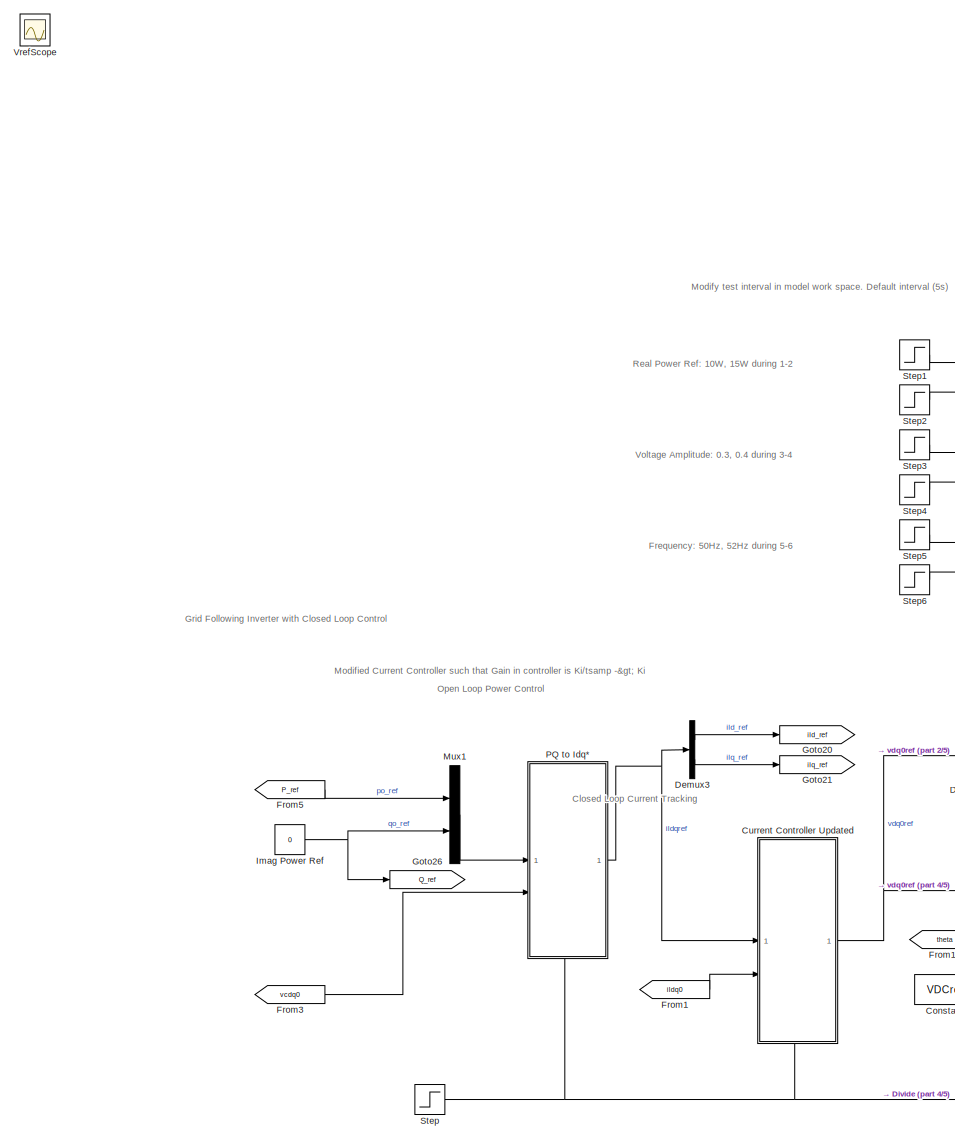
[diagram: root canvas - part 1/5, top left region]
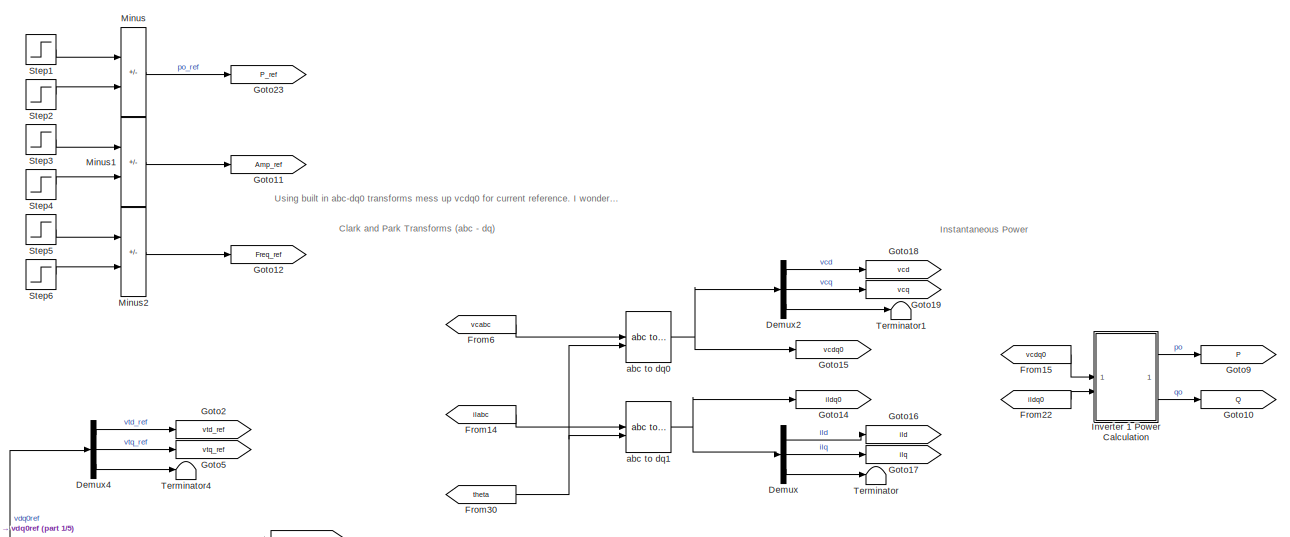
[diagram: root canvas - part 2/5, top center region]
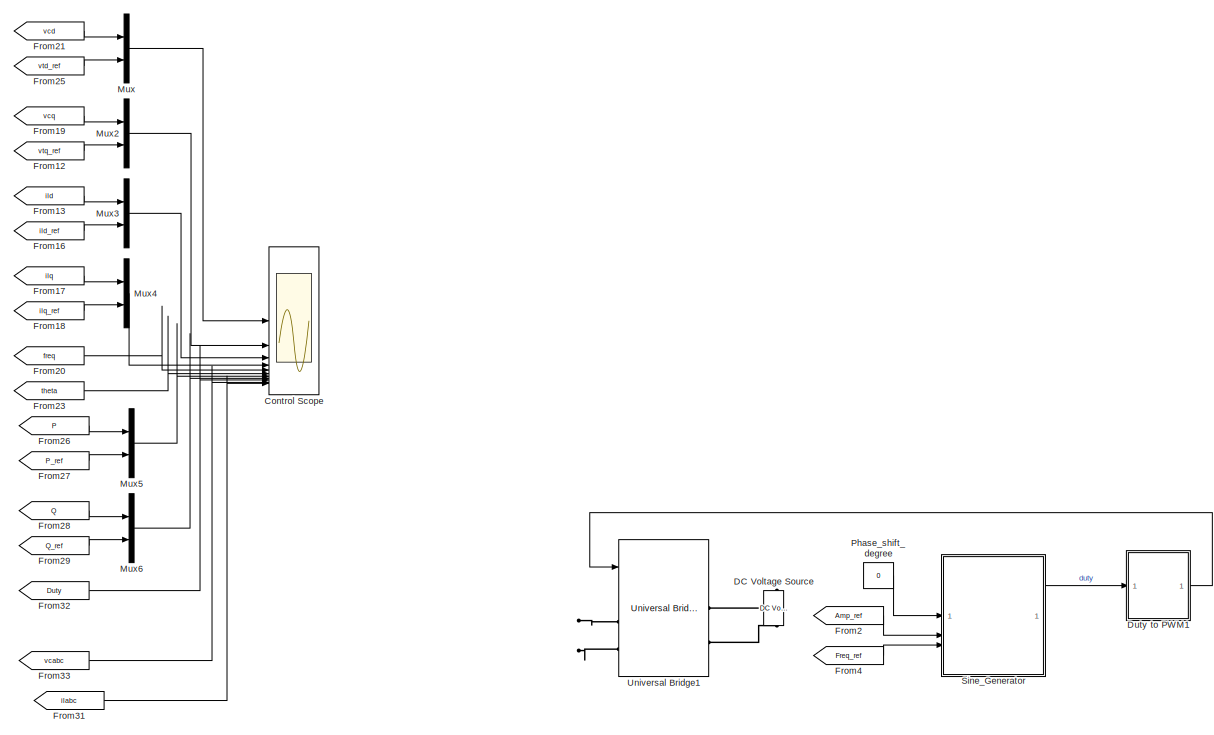
[diagram: root canvas - part 3/5, middle right region]
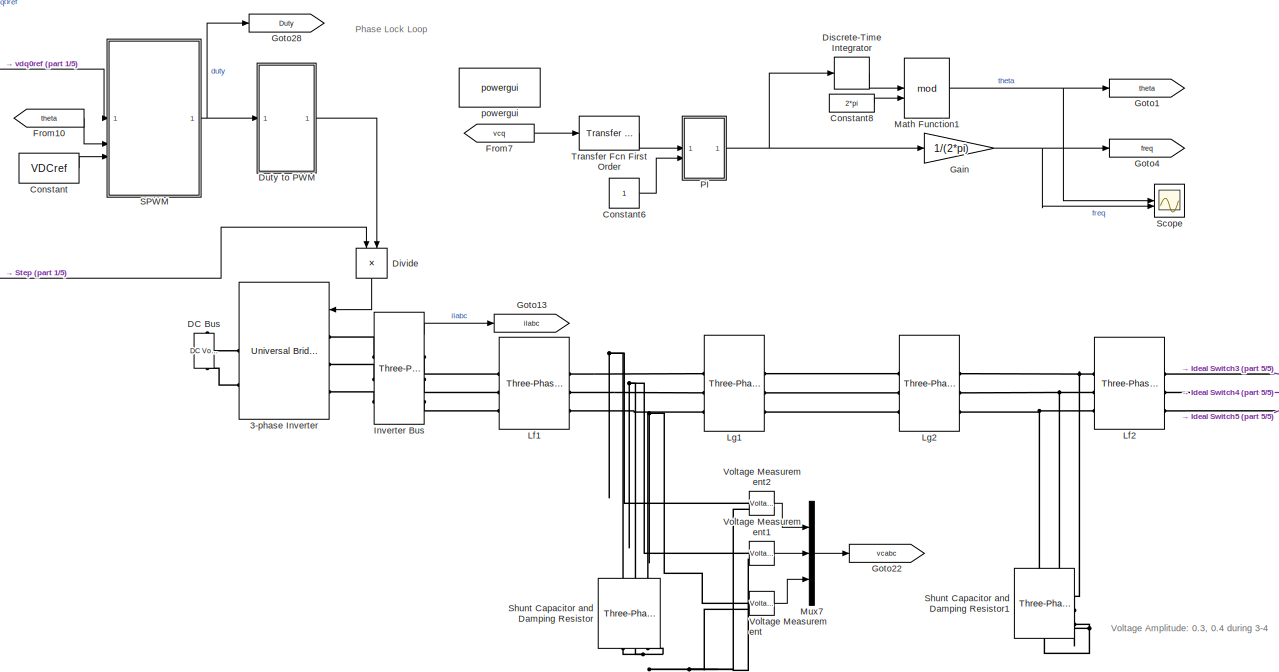
[diagram: root canvas - part 4/5, central region]
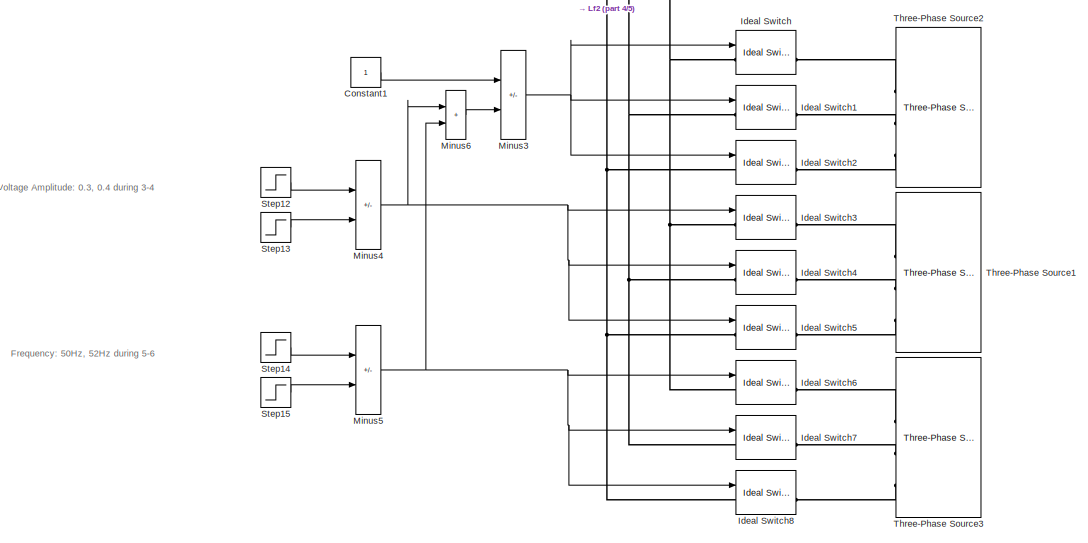
[diagram: root canvas - part 5/5, bottom right region]
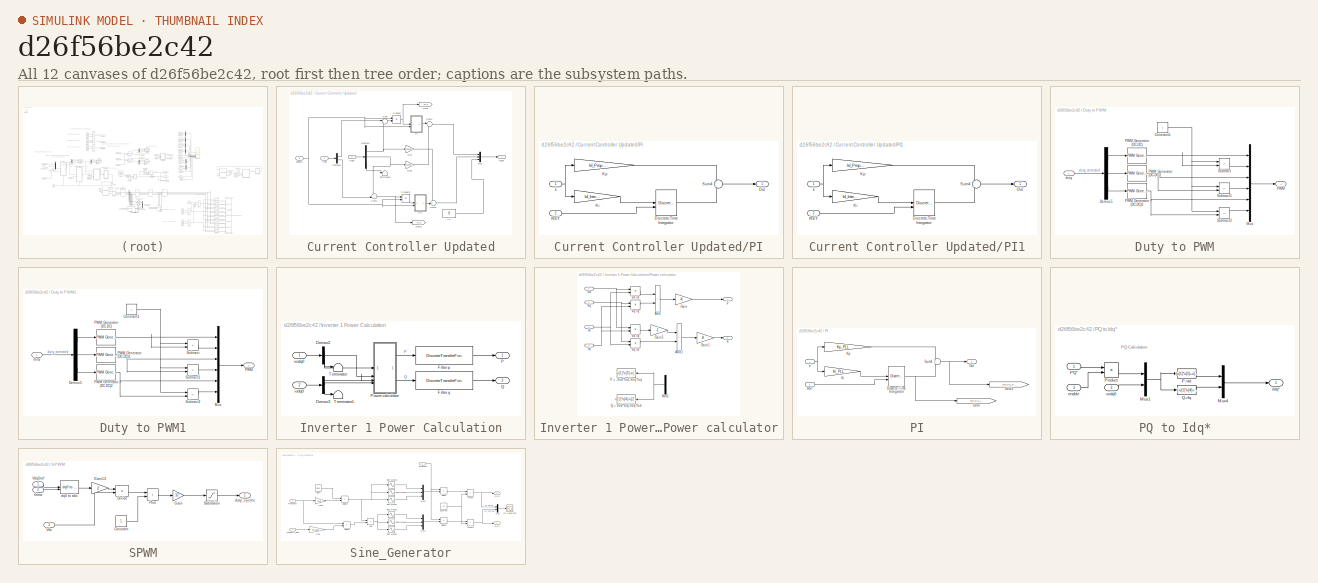
[diagram: thumbnail index - all 12 canvases of the model, root first then tree order]
MODEL slx_d26f56be2c42
KIND model
CONFIG AbsTol = auto
CONFIG EnableMultiTasking = off
CONFIG FixedStep = 1e-6
CONFIG MaxStep = auto
CONFIG MinStep = auto
CONFIG RelTol = 1e-3
CONFIG SampleTimeConstraint = Unconstrained
CONFIG SolverName = FixedStepAuto
CONFIG StartTime = 0.0
CONFIG StopTime = 7
WORKSPACE source: mxarray member
WORKSPACE Fbase = 50
WORKSPACE Filter_Ind = 0.00435
WORKSPACE Fs = 10000
WORKSPACE Ron = 0.005
WORKSPACE Ron_Ideal = 1e-06
WORKSPACE Series1_L = 0.004
WORKSPACE Series1_R = 0.5
WORKSPACE Series2_L = 0.00035
WORKSPACE Shunt_C = 2.2e-06
WORKSPACE Snubber_C = inf
WORKSPACE Snubber_R = 1000000
WORKSPACE Test_Interval = 5
WORKSPACE Ts = 0.0001
WORKSPACE VDCref = 48
BLOCK [Reference] 3-phase Inverter  REF=spsUniversalBridgeLib/Universal Bridge
  SourceBlock = spsUniversalBridgeLib/Universal Bridge
  SourceType = Universal Bridge
BLOCK [Constant] Constant
  Value = VDCref
BLOCK [Constant] Constant1
BLOCK [Constant] Constant6
BLOCK [Constant] Constant8
  NameLocation = top
  Value = 2*pi
BLOCK [Scope] Control Scope
  Floating = off
  NumInputPorts = 12
  ScopeSpecificationString = Simulink.scopes.TimeScopeBlockCfg('CurrentConfiguration', extmgr.ConfigurationSet(extmgr.Configuration('Core','General UI',true,'FigureColor',[1 1 1]),extmgr.Configuration('Core','Source UI',true),extmgr.Configuration('Sources','WiredSimulink',true,'DataLogging',true,'DataLoggingSaveFormat','StructureWithTime','DataLoggingVariableName','GFLData_Sim'),extmgr.Configuration('Visuals','Time Domain',tr...<+10657ch>
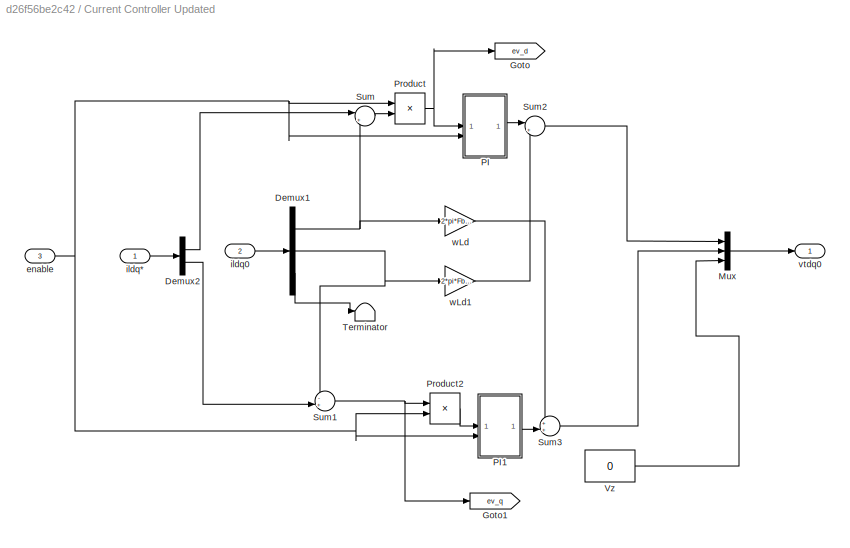
BLOCK [SubSystem] Current Controller Updated
  PortSchema = {"entries":[{"content":{"sides":[{"content":{"connectorIds":["In1","In2"]},"type":"ConnectorPlacement.EquallySpacedRectSide","uuid":"134caf41-c34b-48d0-a71a-522329c40d8c"},{"content":{"connectorIds":["Out1"],"side":"RIGHT"},"type":"ConnectorPlacement.EquallySpacedRectSide","uuid":"de6d8359-09d9-4cb7-8990-bc4b6d48f18d"},{"content":{"connectorIds":[],"side":"TOP"},"type":"ConnectorPlacement.EquallyS...<+395ch>
BLOCK [Demux] Current Controller Updated/Demux1
  Outputs = 3
BLOCK [Demux] Current Controller Updated/Demux2
  Outputs = 2
BLOCK [Goto] Current Controller Updated/Goto
  GotoTag = ev_d
  TagVisibility = global
BLOCK [Goto] Current Controller Updated/Goto1
  GotoTag = ev_q
  TagVisibility = global
BLOCK [Mux] Current Controller Updated/Mux
  DisplayOption = bar
  Inputs = 3
BLOCK [SubSystem] Current Controller Updated/PI
BLOCK [DiscreteIntegrator] Current Controller Updated/PI/Discrete-Time Integrator
  ExternalReset = either
  ICPrevOutput = DiscIntNeverNeededParam
  ICPrevScaledInput = DiscIntNeverNeededParam
  LimitOutput = on
  LowerSaturationLimit = -20000
  SampleTime = Ts
  UpperSaturationLimit = 20000
  gainval = 1
BLOCK [Gain] Current Controller Updated/PI/Ki
  Gain = Id_Integral
  OutDataTypeStr = Inherit: Same as input
  ParamDataTypeStr = Inherit: Same as input
  SaturateOnIntegerOverflow = on
BLOCK [Gain] Current Controller Updated/PI/Kp
  Gain = Id_Proportional
  OutDataTypeStr = Inherit: Same as input
  ParamDataTypeStr = Inherit: Same as input
  SaturateOnIntegerOverflow = on
BLOCK [Outport] Current Controller Updated/PI/Out
BLOCK [Inport] Current Controller Updated/PI/RST
  Port = 2
BLOCK [Sum] Current Controller Updated/PI/Sum4
  SaturateOnIntegerOverflow = on
BLOCK [Inport] Current Controller Updated/PI/e
BLOCK [SubSystem] Current Controller Updated/PI1
BLOCK [DiscreteIntegrator] Current Controller Updated/PI1/Discrete-Time Integrator
  ExternalReset = either
  ICPrevOutput = DiscIntNeverNeededParam
  ICPrevScaledInput = DiscIntNeverNeededParam
  LimitOutput = on
  LowerSaturationLimit = -20000
  SampleTime = Ts
  UpperSaturationLimit = 20000
  gainval = 1
BLOCK [Gain] Current Controller Updated/PI1/Ki
  Gain = Id_Integral
  OutDataTypeStr = Inherit: Same as input
  ParamDataTypeStr = Inherit: Same as input
  SaturateOnIntegerOverflow = on
BLOCK [Gain] Current Controller Updated/PI1/Kp
  Gain = Id_Proportional
  OutDataTypeStr = Inherit: Same as input
  ParamDataTypeStr = Inherit: Same as input
  SaturateOnIntegerOverflow = on
BLOCK [Outport] Current Controller Updated/PI1/Out
BLOCK [Inport] Current Controller Updated/PI1/RST
  Port = 2
BLOCK [Sum] Current Controller Updated/PI1/Sum4
  SaturateOnIntegerOverflow = on
BLOCK [Inport] Current Controller Updated/PI1/e
BLOCK [Product] Current Controller Updated/Product
  RndMeth = Zero
BLOCK [Product] Current Controller Updated/Product2
  RndMeth = Zero
BLOCK [Sum] Current Controller Updated/Sum
  Inputs = |+-
BLOCK [Sum] Current Controller Updated/Sum1
  Inputs = -+|
BLOCK [Sum] Current Controller Updated/Sum2
  Inputs = |+-
BLOCK [Sum] Current Controller Updated/Sum3
  Inputs = ++|
BLOCK [Terminator] Current Controller Updated/Terminator
BLOCK [Constant] Current Controller Updated/Vz
  Value = 0
BLOCK [Inport] Current Controller Updated/enable
  Port = 3
BLOCK [Inport] Current Controller Updated/ildq*
BLOCK [Inport] Current Controller Updated/ildq0
  Port = 2
BLOCK [Outport] Current Controller Updated/vtdq0
BLOCK [Gain] Current Controller Updated/wLd
  Gain = 2*pi*Fbase*Filter_Ind
BLOCK [Gain] Current Controller Updated/wLd1
  Gain = 2*pi*Fbase*Filter_Ind
BLOCK [Reference] DC Bus  REF=spsDCVoltageSourceLib/DC Voltage Source
  LibrarySourceBlock = sps_lib/Sources/DC Voltage Source
  NameLocation = left
  SourceBlock = spsDCVoltageSourceLib/DC Voltage Source
  SourceType = DC Voltage Source
BLOCK [Reference] DC Voltage Source  REF=spsDCVoltageSourceLib/DC Voltage Source
  Commented = on
  LibrarySourceBlock = sps_lib/Sources/DC Voltage Source
  SourceBlock = spsDCVoltageSourceLib/DC Voltage Source
  SourceType = DC Voltage Source
BLOCK [Demux] Demux
  Outputs = 3
BLOCK [Demux] Demux2
  Outputs = 3
BLOCK [Demux] Demux3
  Outputs = 2
BLOCK [Demux] Demux4
  Outputs = 3
BLOCK [DiscreteIntegrator] Discrete-Time Integrator
  ICPrevOutput = DiscIntNeverNeededParam
  ICPrevScaledInput = DiscIntNeverNeededParam
  SampleTime = Ts
BLOCK [Product] Divide
  Inputs = **
  NameLocation = left
BLOCK [SubSystem] Duty to PWM
BLOCK [Constant] Duty to PWM/Constant1
BLOCK [Demux] Duty to PWM/Demux5
  Outputs = 3
BLOCK [Mux] Duty to PWM/Mux
  DisplayOption = bar
  Inputs = 6
BLOCK [Outport] Duty to PWM/PWM
BLOCK [Reference] Duty to PWM/PWM Generator (DC-DC)  REF=spsPWMGeneratorDCDCLib/PWM Generator
(DC-DC)
  LibrarySourceBlock = sps_lib/Power Electronics/Power Electronics Control/PWM Generator\n(DC-DC)
  SourceBlock = spsPWMGeneratorDCDCLib/PWM Generator\n(DC-DC)
  SourceType = PWM Generator (DC-DC)
BLOCK [Reference] Duty to PWM/PWM Generator (DC-DC)1  REF=spsPWMGeneratorDCDCLib/PWM Generator
(DC-DC)
  LibrarySourceBlock = sps_lib/Power Electronics/Power Electronics Control/PWM Generator\n(DC-DC)
  SourceBlock = spsPWMGeneratorDCDCLib/PWM Generator\n(DC-DC)
  SourceType = PWM Generator (DC-DC)
BLOCK [Reference] Duty to PWM/PWM Generator (DC-DC)2  REF=spsPWMGeneratorDCDCLib/PWM Generator
(DC-DC)
  LibrarySourceBlock = sps_lib/Power Electronics/Power Electronics Control/PWM Generator\n(DC-DC)
  SourceBlock = spsPWMGeneratorDCDCLib/PWM Generator\n(DC-DC)
  SourceType = PWM Generator (DC-DC)
BLOCK [Sum] Duty to PWM/Subtract
  IconShape = rectangular
  Inputs = +-
BLOCK [Sum] Duty to PWM/Subtract1
  IconShape = rectangular
  Inputs = +-
BLOCK [Sum] Duty to PWM/Subtract2
  IconShape = rectangular
  Inputs = +-
BLOCK [Inport] Duty to PWM/duty
BLOCK [SubSystem] Duty to PWM1
  Commented = on
BLOCK [Constant] Duty to PWM1/Constant1
BLOCK [Demux] Duty to PWM1/Demux5
  Outputs = 3
BLOCK [Mux] Duty to PWM1/Mux
  DisplayOption = bar
  Inputs = 6
BLOCK [Outport] Duty to PWM1/PWM
BLOCK [Reference] Duty to PWM1/PWM Generator (DC-DC)  REF=spsPWMGeneratorDCDCLib/PWM Generator
(DC-DC)
  LibrarySourceBlock = sps_lib/Power Electronics/Power Electronics Control/PWM Generator\n(DC-DC)
  SourceBlock = spsPWMGeneratorDCDCLib/PWM Generator\n(DC-DC)
  SourceType = PWM Generator (DC-DC)
BLOCK [Reference] Duty to PWM1/PWM Generator (DC-DC)1  REF=spsPWMGeneratorDCDCLib/PWM Generator
(DC-DC)
  LibrarySourceBlock = sps_lib/Power Electronics/Power Electronics Control/PWM Generator\n(DC-DC)
  SourceBlock = spsPWMGeneratorDCDCLib/PWM Generator\n(DC-DC)
  SourceType = PWM Generator (DC-DC)
BLOCK [Reference] Duty to PWM1/PWM Generator (DC-DC)2  REF=spsPWMGeneratorDCDCLib/PWM Generator
(DC-DC)
  LibrarySourceBlock = sps_lib/Power Electronics/Power Electronics Control/PWM Generator\n(DC-DC)
  SourceBlock = spsPWMGeneratorDCDCLib/PWM Generator\n(DC-DC)
  SourceType = PWM Generator (DC-DC)
BLOCK [Sum] Duty to PWM1/Subtract
  IconShape = rectangular
  Inputs = +-
BLOCK [Sum] Duty to PWM1/Subtract1
  IconShape = rectangular
  Inputs = +-
BLOCK [Sum] Duty to PWM1/Subtract2
  IconShape = rectangular
  Inputs = +-
BLOCK [Inport] Duty to PWM1/duty
BLOCK [From] From1
  CloseFcn = tagdialog Close
  GotoTag = ildq0
  NameLocation = top
BLOCK [From] From10
  CloseFcn = tagdialog Close
  GotoTag = theta
  NameLocation = top
BLOCK [From] From12
  CloseFcn = tagdialog Close
  GotoTag = vtq_ref
  NameLocation = top
BLOCK [From] From13
  CloseFcn = tagdialog Close
  GotoTag = ild
  NameLocation = top
BLOCK [From] From14
  CloseFcn = tagdialog Close
  GotoTag = ilabc
  NameLocation = top
BLOCK [From] From15
  CloseFcn = tagdialog Close
  GotoTag = vcdq0
  NameLocation = top
BLOCK [From] From16
  CloseFcn = tagdialog Close
  GotoTag = ild_ref
  NameLocation = top
BLOCK [From] From17
  CloseFcn = tagdialog Close
  GotoTag = ilq
  NameLocation = top
BLOCK [From] From18
  CloseFcn = tagdialog Close
  GotoTag = ilq_ref
  NameLocation = top
BLOCK [From] From19
  CloseFcn = tagdialog Close
  GotoTag = vcq
  NameLocation = top
BLOCK [From] From2
  CloseFcn = tagdialog Close
  Commented = on
  GotoTag = Amp_ref
  NameLocation = top
BLOCK [From] From20
  GotoTag = freq
BLOCK [From] From21
  CloseFcn = tagdialog Close
  GotoTag = vcd
  NameLocation = top
BLOCK [From] From22
  CloseFcn = tagdialog Close
  GotoTag = ildq0
  NameLocation = top
BLOCK [From] From23
  GotoTag = theta
BLOCK [From] From25
  CloseFcn = tagdialog Close
  GotoTag = vtd_ref
  NameLocation = top
BLOCK [From] From26
  CloseFcn = tagdialog Close
  GotoTag = P
  NameLocation = top
BLOCK [From] From27
  CloseFcn = tagdialog Close
  GotoTag = P_ref
  NameLocation = top
BLOCK [From] From28
  CloseFcn = tagdialog Close
  GotoTag = Q
  NameLocation = top
BLOCK [From] From29
  CloseFcn = tagdialog Close
  GotoTag = Q_ref
  NameLocation = top
BLOCK [From] From3
  CloseFcn = tagdialog Close
  GotoTag = vcdq0
  NameLocation = top
BLOCK [From] From30
  CloseFcn = tagdialog Close
  GotoTag = theta
  NameLocation = top
BLOCK [From] From31
  CloseFcn = tagdialog Close
  GotoTag = ilabc
  NameLocation = top
BLOCK [From] From32
  CloseFcn = tagdialog Close
  GotoTag = Duty
  NameLocation = top
BLOCK [From] From33
  CloseFcn = tagdialog Close
  GotoTag = vcabc
  NameLocation = top
BLOCK [From] From4
  CloseFcn = tagdialog Close
  Commented = on
  GotoTag = Freq_ref
  NameLocation = top
BLOCK [From] From5
  CloseFcn = tagdialog Close
  GotoTag = P_ref
  NameLocation = top
BLOCK [From] From6
  CloseFcn = tagdialog Close
  GotoTag = vcabc
  NameLocation = top
BLOCK [From] From7
  CloseFcn = tagdialog Close
  GotoTag = vcq
  NameLocation = top
BLOCK [Gain] Gain
  Gain = 1/(2*pi)
BLOCK [Goto] Goto1
  GotoTag = theta
BLOCK [Goto] Goto10
  GotoTag = Q
BLOCK [Goto] Goto11
  GotoTag = Amp_ref
BLOCK [Goto] Goto12
  GotoTag = Freq_ref
BLOCK [Goto] Goto13
  GotoTag = ilabc
BLOCK [Goto] Goto14
  GotoTag = ildq0
BLOCK [Goto] Goto15
  GotoTag = vcdq0
BLOCK [Goto] Goto16
  GotoTag = ild
BLOCK [Goto] Goto17
  GotoTag = ilq
BLOCK [Goto] Goto18
  GotoTag = vcd
BLOCK [Goto] Goto19
  GotoTag = vcq
BLOCK [Goto] Goto2
  GotoTag = vtd_ref
BLOCK [Goto] Goto20
  GotoTag = ild_ref
BLOCK [Goto] Goto21
  GotoTag = ilq_ref
BLOCK [Goto] Goto22
  GotoTag = vcabc
BLOCK [Goto] Goto23
  GotoTag = P_ref
BLOCK [Goto] Goto26
  GotoTag = Q_ref
BLOCK [Goto] Goto28
  GotoTag = Duty
BLOCK [Goto] Goto4
  GotoTag = freq
BLOCK [Goto] Goto5
  GotoTag = vtq_ref
BLOCK [Goto] Goto9
  GotoTag = P
BLOCK [Reference] Ideal Switch  REF=spsIdealSwitchLib/Ideal Switch
  LibrarySourceBlock = sps_lib/Power Electronics/Ideal Switch
  SourceBlock = spsIdealSwitchLib/Ideal Switch
  SourceType = Ideal Switch
BLOCK [Reference] Ideal Switch1  REF=spsIdealSwitchLib/Ideal Switch
  LibrarySourceBlock = sps_lib/Power Electronics/Ideal Switch
  SourceBlock = spsIdealSwitchLib/Ideal Switch
  SourceType = Ideal Switch
BLOCK [Reference] Ideal Switch2  REF=spsIdealSwitchLib/Ideal Switch
  LibrarySourceBlock = sps_lib/Power Electronics/Ideal Switch
  SourceBlock = spsIdealSwitchLib/Ideal Switch
  SourceType = Ideal Switch
BLOCK [Reference] Ideal Switch3  REF=spsIdealSwitchLib/Ideal Switch
  LibrarySourceBlock = sps_lib/Power Electronics/Ideal Switch
  SourceBlock = spsIdealSwitchLib/Ideal Switch
  SourceType = Ideal Switch
BLOCK [Reference] Ideal Switch4  REF=spsIdealSwitchLib/Ideal Switch
  LibrarySourceBlock = sps_lib/Power Electronics/Ideal Switch
  SourceBlock = spsIdealSwitchLib/Ideal Switch
  SourceType = Ideal Switch
BLOCK [Reference] Ideal Switch5  REF=spsIdealSwitchLib/Ideal Switch
  LibrarySourceBlock = sps_lib/Power Electronics/Ideal Switch
  SourceBlock = spsIdealSwitchLib/Ideal Switch
  SourceType = Ideal Switch
BLOCK [Reference] Ideal Switch6  REF=spsIdealSwitchLib/Ideal Switch
  LibrarySourceBlock = sps_lib/Power Electronics/Ideal Switch
  SourceBlock = spsIdealSwitchLib/Ideal Switch
  SourceType = Ideal Switch
BLOCK [Reference] Ideal Switch7  REF=spsIdealSwitchLib/Ideal Switch
  LibrarySourceBlock = sps_lib/Power Electronics/Ideal Switch
  SourceBlock = spsIdealSwitchLib/Ideal Switch
  SourceType = Ideal Switch
BLOCK [Reference] Ideal Switch8  REF=spsIdealSwitchLib/Ideal Switch
  LibrarySourceBlock = sps_lib/Power Electronics/Ideal Switch
  SourceBlock = spsIdealSwitchLib/Ideal Switch
  SourceType = Ideal Switch
BLOCK [Constant] Imag Power Ref
  Value = 0
BLOCK [SubSystem] Inverter 1 Power Calculation
BLOCK [Demux] Inverter 1 Power Calculation/Demux2
  Outputs = 3
BLOCK [Demux] Inverter 1 Power Calculation/Demux3
  Outputs = 3
BLOCK [DiscreteTransferFcn] Inverter 1 Power Calculation/Filter p
  Denominator = [1 ((250*2*pi*Ts)-1)]
  InputPortMap = u0
  Numerator = 250*2*pi*Ts
  SampleTime = Ts
BLOCK [DiscreteTransferFcn] Inverter 1 Power Calculation/Filter q
  Denominator = [1 ((250*2*pi*Ts)-1)]
  InputPortMap = u0
  Numerator = 250*2*pi*Ts
  SampleTime = Ts
BLOCK [Outport] Inverter 1 Power Calculation/P
BLOCK [SubSystem] Inverter 1 Power Calculation/Power calculator
BLOCK [Sum] Inverter 1 Power Calculation/Power calculator/Add
  IconShape = rectangular
BLOCK [Sum] Inverter 1 Power Calculation/Power calculator/Add1
  IconShape = rectangular
BLOCK [Gain] Inverter 1 Power Calculation/Power calculator/Gain
BLOCK [Gain] Inverter 1 Power Calculation/Power calculator/Gain1
BLOCK [Gain] Inverter 1 Power Calculation/Power calculator/Gain2
  Gain = -1
BLOCK [Inport] Inverter 1 Power Calculation/Power calculator/Id
  NameLocation = top
  Port = 3
BLOCK [Inport] Inverter 1 Power Calculation/Power calculator/Iq
  NameLocation = top
  Port = 4
BLOCK [Mux] Inverter 1 Power Calculation/Power calculator/Mux1
  Commented = on
  DisplayOption = bar
  NameLocation = top
BLOCK [Fcn] Inverter 1 Power Calculation/Power calculator/P = -Vod*Iod-Voq*Ioq
  Commented = on
  Expr = -u[1]*u[3]-u[2]*u[4]
  NameLocation = top
BLOCK [Fcn] Inverter 1 Power Calculation/Power calculator/Q = Vod*Ioq-Voq*Iod
  Commented = on
  Expr = u[1]*u[4]-u[2]*u[3]
  NameLocation = top
BLOCK [Inport] Inverter 1 Power Calculation/Power calculator/Vd
  NameLocation = top
BLOCK [Product] Inverter 1 Power Calculation/Power calculator/Vd Id
BLOCK [Product] Inverter 1 Power Calculation/Power calculator/Vd Iq
BLOCK [Inport] Inverter 1 Power Calculation/Power calculator/Vq
  NameLocation = top
  Port = 2
BLOCK [Product] Inverter 1 Power Calculation/Power calculator/Vq Id
BLOCK [Product] Inverter 1 Power Calculation/Power calculator/Vq Iq
BLOCK [Outport] Inverter 1 Power Calculation/Power calculator/p
  NameLocation = top
BLOCK [Outport] Inverter 1 Power Calculation/Power calculator/q
  NameLocation = top
  Port = 2
BLOCK [Outport] Inverter 1 Power Calculation/Q
  Port = 2
BLOCK [Terminator] Inverter 1 Power Calculation/Terminator
BLOCK [Terminator] Inverter 1 Power Calculation/Terminator1
BLOCK [Inport] Inverter 1 Power Calculation/iodq0
  Port = 2
BLOCK [Inport] Inverter 1 Power Calculation/vodq0
BLOCK [Reference] Inverter Bus  REF=spsThreePhaseVIMeasurementLib/Three-Phase
V-I Measurement
  SourceBlock = spsThreePhaseVIMeasurementLib/Three-Phase\nV-I Measurement
  SourceType = Three-Phase VI Measurement
BLOCK [Reference] Lf1  REF=spsThreePhaseSeriesRLCBranchLib/Three-Phase
Series RLC Branch
  AttributesFormatString = \n
  SourceBlock = spsThreePhaseSeriesRLCBranchLib/Three-Phase\nSeries RLC Branch
  SourceType = Three-Phase Series RLC Branch
BLOCK [Reference] Lf2  REF=spsThreePhaseSeriesRLCBranchLib/Three-Phase
Series RLC Branch
  AttributesFormatString = \n
  SourceBlock = spsThreePhaseSeriesRLCBranchLib/Three-Phase\nSeries RLC Branch
  SourceType = Three-Phase Series RLC Branch
BLOCK [Reference] Lg1  REF=spsThreePhaseSeriesRLCBranchLib/Three-Phase
Series RLC Branch
  AttributesFormatString = \n
  SourceBlock = spsThreePhaseSeriesRLCBranchLib/Three-Phase\nSeries RLC Branch
  SourceType = Three-Phase Series RLC Branch
BLOCK [Reference] Lg2  REF=spsThreePhaseSeriesRLCBranchLib/Three-Phase
Series RLC Branch
  AttributesFormatString = \n
  SourceBlock = spsThreePhaseSeriesRLCBranchLib/Three-Phase\nSeries RLC Branch
  SourceType = Three-Phase Series RLC Branch
BLOCK [Math] Math Function1
  Operator = mod
  SignedPower = on
BLOCK [Sum] Minus
  IconShape = rectangular
  Inputs = +-
BLOCK [Sum] Minus1
  IconShape = rectangular
  Inputs = +-
BLOCK [Sum] Minus2
  IconShape = rectangular
  Inputs = +-
BLOCK [Sum] Minus3
  IconShape = rectangular
  Inputs = +-
BLOCK [Sum] Minus4
  IconShape = rectangular
  Inputs = +-
BLOCK [Sum] Minus5
  IconShape = rectangular
  Inputs = +-
BLOCK [Sum] Minus6
  IconShape = rectangular
BLOCK [Mux] Mux
  DisplayOption = bar
  Inputs = 2
BLOCK [Mux] Mux1
  DisplayOption = bar
  Inputs = 2
BLOCK [Mux] Mux2
  DisplayOption = bar
  Inputs = 2
BLOCK [Mux] Mux3
  DisplayOption = bar
  Inputs = 2
BLOCK [Mux] Mux4
  DisplayOption = bar
  Inputs = 2
BLOCK [Mux] Mux5
  DisplayOption = bar
  Inputs = 2
BLOCK [Mux] Mux6
  DisplayOption = bar
  Inputs = 2
BLOCK [Mux] Mux7
  DisplayOption = bar
  Inputs = 3
BLOCK [SubSystem] PI
BLOCK [DiscreteIntegrator] PI/Discrete-Time Integrator
  ExternalReset = either
  ICPrevOutput = DiscIntNeverNeededParam
  ICPrevScaledInput = DiscIntNeverNeededParam
  InitialCondition = 2*pi*Fbase
  LimitOutput = on
  LowerSaturationLimit = 2*pi*Fbase - IntSat_PLL
  SampleTime = Ts
  UpperSaturationLimit = 2*pi*Fbase + IntSat_PLL
  gainval = 1
BLOCK [Goto] PI/Goto
  GotoTag = GFL_PLL_Int_Out
  TagVisibility = global
BLOCK [Goto] PI/Goto1
  GotoTag = GFL_PLL_PI_Out
  TagVisibility = global
BLOCK [Gain] PI/Ki
  Gain = Ki_PLL
  OutDataTypeStr = Inherit: Same as input
  ParamDataTypeStr = Inherit: Same as input
  SaturateOnIntegerOverflow = on
BLOCK [Gain] PI/Kp
  Gain = Kp_PLL
  OutDataTypeStr = Inherit: Same as input
  ParamDataTypeStr = Inherit: Same as input
  SaturateOnIntegerOverflow = on
BLOCK [Outport] PI/Out
BLOCK [Inport] PI/RST
  Port = 2
BLOCK [Sum] PI/Sum4
  SaturateOnIntegerOverflow = on
BLOCK [Inport] PI/e
BLOCK [SubSystem] PQ to Idq*
  PortSchema = {"entries":[{"content":{"sides":[{"content":{"connectorIds":["In1","In2"]},"type":"ConnectorPlacement.EquallySpacedRectSide","uuid":"5271b3ed-46a4-4113-9b69-458d23b85fa2"},{"content":{"connectorIds":["Out1"],"side":"RIGHT"},"type":"ConnectorPlacement.EquallySpacedRectSide","uuid":"00fb532b-4b50-4607-a5c4-cd74a5a5fc42"},{"content":{"connectorIds":[],"side":"TOP"},"type":"ConnectorPlacement.EquallyS...<+395ch>
BLOCK [Mux] PQ to Idq*/Mux1
  DisplayOption = bar
  Inputs = 2
BLOCK [Mux] PQ to Idq*/Mux4
  DisplayOption = bar
  Inputs = 2
BLOCK [Fcn] PQ to Idq*/P->Id
  Expr = (u[1]*u[3]+u[2]*u[4])/(u[3]*u[3]+u[4]*u[4])
BLOCK [Inport] PQ to Idq*/PQ*
BLOCK [Product] PQ to Idq*/Product
  RndMeth = Zero
BLOCK [Fcn] PQ to Idq*/Q->Iq
  Expr = -(-u[1]*u[4]+u[2]*u[3])/(u[3]*u[3]+u[4]*u[4])
BLOCK [Inport] PQ to Idq*/enable
  Port = 3
BLOCK [Outport] PQ to Idq*/iIdq*
BLOCK [Inport] PQ to Idq*/vodq0
  Port = 2
BLOCK [Constant] Phase_shift_degree
  Commented = on
  Value = 0
BLOCK [SubSystem] SPWM
BLOCK [Constant] SPWM/Constant
BLOCK [Product] SPWM/Divide
  Inputs = */
BLOCK [Gain] SPWM/Gain
  Gain = 1/2
BLOCK [Gain] SPWM/Gain13
  Gain = 2
BLOCK [Sum] SPWM/Plus
  IconShape = rectangular
BLOCK [Saturate] SPWM/Saturation
  LowerLimit = 0.1
  UpperLimit = 0.9
BLOCK [Inport] SPWM/Vdc
  Port = 3
BLOCK [Inport] SPWM/Vdq0ref
  NameLocation = top
BLOCK [Reference] SPWM/dq0 to abc  REF=spsdq0toabcLib/dq0 to abc
  LibrarySourceBlock = sps_lib/Control/dq0 to abc
  SourceBlock = spsdq0toabcLib/dq0 to abc
  SourceType = dq0 to abc Transformation
BLOCK [Outport] SPWM/duty_cycles
BLOCK [Inport] SPWM/theta
  Port = 2
BLOCK [Scope] Scope
  Floating = off
  NumInputPorts = 2
  ScopeSpecificationString = Simulink.scopes.TimeScopeBlockCfg('CurrentConfiguration', extmgr.ConfigurationSet(extmgr.Configuration('Core','General UI',true),extmgr.Configuration('Core','Source UI',true),extmgr.Configuration('Sources','WiredSimulink',true,'DataLoggingVariableName','ScopeData1'),extmgr.Configuration('Visuals','Time Domain',true,'SerializedDisplays',{struct('MinYLimReal','-0.78539','MaxYLimReal','7.06848','YLab...<+2012ch>
BLOCK [Reference] Shunt Capacitor and Damping Resistor  REF=spsThreePhaseSeriesRLCBranchLib/Three-Phase
Series RLC Branch
  AttributesFormatString = \n
  NameLocation = left
  SourceBlock = spsThreePhaseSeriesRLCBranchLib/Three-Phase\nSeries RLC Branch
  SourceType = Three-Phase Series RLC Branch
BLOCK [Reference] Shunt Capacitor and Damping Resistor1  REF=spsThreePhaseSeriesRLCBranchLib/Three-Phase
Series RLC Branch
  AttributesFormatString = \n
  NameLocation = right
  SourceBlock = spsThreePhaseSeriesRLCBranchLib/Three-Phase\nSeries RLC Branch
  SourceType = Three-Phase Series RLC Branch
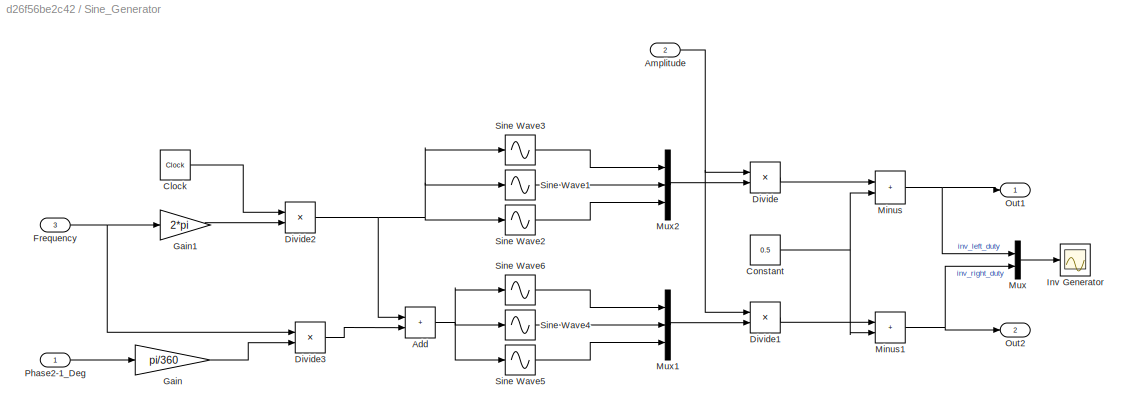
BLOCK [SubSystem] Sine_Generator
  Commented = on
BLOCK [Sum] Sine_Generator/Add
  IconShape = rectangular
BLOCK [Inport] Sine_Generator/Amplitude
  Port = 2
BLOCK [Clock] Sine_Generator/Clock
BLOCK [Constant] Sine_Generator/Constant
  Value = 0.5
BLOCK [Product] Sine_Generator/Divide
  Inputs = **
BLOCK [Product] Sine_Generator/Divide1
  Inputs = **
BLOCK [Product] Sine_Generator/Divide2
  Inputs = **
BLOCK [Product] Sine_Generator/Divide3
  Inputs = **
BLOCK [Inport] Sine_Generator/Frequency
  Port = 3
BLOCK [Gain] Sine_Generator/Gain
  Gain = pi/360
BLOCK [Gain] Sine_Generator/Gain1
  Gain = 2*pi
BLOCK [Scope] Sine_Generator/Inv Generator
  Floating = off
  NumInputPorts = 1
  ScopeSpecificationString = Simulink.scopes.TimeScopeBlockCfg('CurrentConfiguration', extmgr.ConfigurationSet(extmgr.Configuration('Core','General UI',true),extmgr.Configuration('Core','Source UI',true),extmgr.Configuration('Sources','WiredSimulink',true,'DataLoggingVariableName','ScopeData2'),extmgr.Configuration('Visuals','Time Domain',true,'SerializedDisplays',{struct('MinYLimReal','0.125','MaxYLimReal','0.875','YLabelRea...<+2019ch>
BLOCK [Sum] Sine_Generator/Minus
  IconShape = rectangular
BLOCK [Sum] Sine_Generator/Minus1
  IconShape = rectangular
BLOCK [Mux] Sine_Generator/Mux
  DisplayOption = bar
  Inputs = 2
BLOCK [Mux] Sine_Generator/Mux1
  DisplayOption = bar
  Inputs = 3
BLOCK [Mux] Sine_Generator/Mux2
  DisplayOption = bar
  Inputs = 3
BLOCK [Outport] Sine_Generator/Out1
BLOCK [Outport] Sine_Generator/Out2
  Port = 2
BLOCK [Inport] Sine_Generator/Phase2-1_Deg
BLOCK [Sin] Sine_Generator/Sine Wave1
  Phase = -2*pi/3
  TimeSource = Use external signal
BLOCK [Sin] Sine_Generator/Sine Wave2
  Phase = 2*pi/3
  TimeSource = Use external signal
BLOCK [Sin] Sine_Generator/Sine Wave3
  TimeSource = Use external signal
BLOCK [Sin] Sine_Generator/Sine Wave4
  Phase = -2*pi/3
  TimeSource = Use external signal
BLOCK [Sin] Sine_Generator/Sine Wave5
  Phase = 2*pi/3
  TimeSource = Use external signal
BLOCK [Sin] Sine_Generator/Sine Wave6
  TimeSource = Use external signal
BLOCK [Step] Step
  SampleTime = 0
  Time = 2.5
BLOCK [Step] Step1
  After = 15
  Before = 10
  Time = Test_Interval*1
BLOCK [Step] Step12
  Time = Test_Interval*3
BLOCK [Step] Step13
  Time = Test_Interval*4
BLOCK [Step] Step14
  SampleTime = 0
  Time = Test_Interval*5
BLOCK [Step] Step15
  Time = Test_Interval*6
BLOCK [Step] Step2
  After = 5
  Time = Test_Interval*2
BLOCK [Step] Step3
  After = 0.4
  Before = 0.3
  Time = Test_Interval*3
BLOCK [Step] Step4
  After = 0.1
  Time = Test_Interval*4
BLOCK [Step] Step5
  After = 52
  Before = 50
  SampleTime = 0
  Time = Test_Interval*5
BLOCK [Step] Step6
  After = 2
  Time = Test_Interval*6
BLOCK [Terminator] Terminator
BLOCK [Terminator] Terminator1
BLOCK [Terminator] Terminator4
BLOCK [Reference] Three-Phase Source1  REF=spsThreePhaseSourceLib/Three-Phase Source
  LibrarySourceBlock = sps_lib/Sources/Three-Phase Source
  SourceBlock = spsThreePhaseSourceLib/Three-Phase Source
  SourceType = Three-Phase Source
BLOCK [Reference] Three-Phase Source2  REF=spsThreePhaseSourceLib/Three-Phase Source
  LibrarySourceBlock = sps_lib/Sources/Three-Phase Source
  SourceBlock = spsThreePhaseSourceLib/Three-Phase Source
  SourceType = Three-Phase Source
BLOCK [Reference] Three-Phase Source3  REF=spsThreePhaseSourceLib/Three-Phase Source
  LibrarySourceBlock = sps_lib/Sources/Three-Phase Source
  SourceBlock = spsThreePhaseSourceLib/Three-Phase Source
  SourceType = Three-Phase Source
BLOCK [Reference] Transfer Fcn First Order  REF=simulink/Discrete/Transfer Fcn
First Order
  SourceBlock = simulink/Discrete/Transfer Fcn\nFirst Order
  SourceType = First Order Transfer Fcn
BLOCK [Reference] Universal Bridge1  REF=spsUniversalBridgeLib/Universal Bridge
  Commented = on
  SourceBlock = spsUniversalBridgeLib/Universal Bridge
  SourceType = Universal Bridge
BLOCK [Reference] Voltage Measurement  REF=spsVoltageMeasurementLib/Voltage Measurement
  LibrarySourceBlock = sps_lib/Sensors and Measurements/Voltage Measurement
  SourceBlock = spsVoltageMeasurementLib/Voltage Measurement
  SourceType = Voltage Measurement
  UserDataPersistent = on
BLOCK [Reference] Voltage Measurement1  REF=spsVoltageMeasurementLib/Voltage Measurement
  LibrarySourceBlock = sps_lib/Sensors and Measurements/Voltage Measurement
  SourceBlock = spsVoltageMeasurementLib/Voltage Measurement
  SourceType = Voltage Measurement
  UserDataPersistent = on
BLOCK [Reference] Voltage Measurement2  REF=spsVoltageMeasurementLib/Voltage Measurement
  LibrarySourceBlock = sps_lib/Sensors and Measurements/Voltage Measurement
  SourceBlock = spsVoltageMeasurementLib/Voltage Measurement
  SourceType = Voltage Measurement
  UserDataPersistent = on
BLOCK [Scope] VrefScope
  Floating = off
  IOType = viewer
  NumInputPorts = 1
  ScopeSpecificationString = Simulink.scopes.TimeScopeBlockCfg('CurrentConfiguration', extmgr.ConfigurationSet(extmgr.Configuration('Core','General UI',true,'FigureColor',[1 1 1]),extmgr.Configuration('Core','Source UI',true),extmgr.Configuration('Sources','WiredSimulink',true,'DataLoggingVariableName','ScopeData1'),extmgr.Configuration('Visuals','Time Domain',true,'SerializedDisplays',{struct('MinYLimReal','-625.00000','MaxY...<+2296ch>
BLOCK [Reference] abc to dq0  REF=spsabctodq0Lib/abc to dq0
  LibrarySourceBlock = sps_lib/Control/abc to dq0
  SourceBlock = spsabctodq0Lib/abc to dq0
  SourceType = abc to dq0 Transformation
BLOCK [Reference] abc to dq1  REF=spsabctodq0Lib/abc to dq0
  LibrarySourceBlock = sps_lib/Control/abc to dq0
  SourceBlock = spsabctodq0Lib/abc to dq0
  SourceType = abc to dq0 Transformation
BLOCK [Reference] powergui  REF=spspowerguiLib/powergui
  Priority = 1
  SourceBlock = spspowerguiLib/powergui
  SourceType = PSB option menu block
ANNOTATION (root): Modified Current Controller such that Gain in controller is Ki/tsamp -> Ki
ANNOTATION (root): Using built in abc-dq0 transforms mess up vcdq0 for current reference. I wonder why
ANNOTATION (root): Clark and Park Transforms (abc - dq)
ANNOTATION (root): Closed Loop Current Tracking
ANNOTATION (root): Frequency: 50Hz, 52Hz during 5-6
ANNOTATION (root): Grid Following Inverter with Closed Loop Control
ANNOTATION (root): Instantaneous Power
ANNOTATION (root): Modify test interval in model work space. Default interval (5s)
ANNOTATION (root): Open Loop Power Control
ANNOTATION (root): Phase Lock Loop
ANNOTATION (root): Real Power Ref: 10W, 15W during 1-2
ANNOTATION (root): Voltage Amplitude: 0.3, 0.4 during 3-4
ANNOTATION PQ to Idq*: PQ Calculation
LINE Constant1:1 -> Minus3:1
LINE Constant6:1 -> PI:2
LINE Constant8:1 -> Math Function1:2
LINE Constant:1 -> SPWM:3
NET Current Controller Updated/Demux1:1 -> Current Controller Updated/Sum:2, Current Controller Updated/wLd:1
NET Current Controller Updated/Demux1:2 -> Current Controller Updated/Sum1:1, Current Controller Updated/wLd1:1
LINE Current Controller Updated/Demux1:3 -> Current Controller Updated/Terminator:1
LINE Current Controller Updated/Demux2:1 -> Current Controller Updated/Sum:1
LINE Current Controller Updated/Demux2:2 -> Current Controller Updated/Sum1:2
LINE Current Controller Updated/Mux:1 -> Current Controller Updated/vtdq0:1
LINE Current Controller Updated/PI/Discrete-Time Integrator:1 -> Current Controller Updated/PI/Sum4:2
LINE Current Controller Updated/PI/Ki:1 -> Current Controller Updated/PI/Discrete-Time Integrator:1
LINE Current Controller Updated/PI/Kp:1 -> Current Controller Updated/PI/Sum4:1
LINE Current Controller Updated/PI/RST:1 -> Current Controller Updated/PI/Discrete-Time Integrator:2
LINE Current Controller Updated/PI/Sum4:1 -> Current Controller Updated/PI/Out:1
NET Current Controller Updated/PI/e:1 -> Current Controller Updated/PI/Ki:1, Current Controller Updated/PI/Kp:1
LINE Current Controller Updated/PI1/Discrete-Time Integrator:1 -> Current Controller Updated/PI1/Sum4:2
LINE Current Controller Updated/PI1/Ki:1 -> Current Controller Updated/PI1/Discrete-Time Integrator:1
LINE Current Controller Updated/PI1/Kp:1 -> Current Controller Updated/PI1/Sum4:1
LINE Current Controller Updated/PI1/RST:1 -> Current Controller Updated/PI1/Discrete-Time Integrator:2
LINE Current Controller Updated/PI1/Sum4:1 -> Current Controller Updated/PI1/Out:1
NET Current Controller Updated/PI1/e:1 -> Current Controller Updated/PI1/Ki:1, Current Controller Updated/PI1/Kp:1
LINE Current Controller Updated/PI1:1 -> Current Controller Updated/Sum3:2
LINE Current Controller Updated/PI:1 -> Current Controller Updated/Sum2:1
LINE Current Controller Updated/Product2:1 -> Current Controller Updated/PI1:1
NET Current Controller Updated/Product:1 -> Current Controller Updated/Goto:1, Current Controller Updated/PI:1
NET Current Controller Updated/Sum1:1 -> Current Controller Updated/Goto1:1, Current Controller Updated/Product2:1
LINE Current Controller Updated/Sum2:1 -> Current Controller Updated/Mux:1
LINE Current Controller Updated/Sum3:1 -> Current Controller Updated/Mux:2
LINE Current Controller Updated/Sum:1 -> Current Controller Updated/Product:2
LINE Current Controller Updated/Vz:1 -> Current Controller Updated/Mux:3
NET Current Controller Updated/enable:1 -> Current Controller Updated/PI1:2, Current Controller Updated/PI:2, Current Controller Updated/Product2:2, Current Controller Updated/Product:1
LINE Current Controller Updated/ildq*:1 -> Current Controller Updated/Demux2:1
LINE Current Controller Updated/ildq0:1 -> Current Controller Updated/Demux1:1
LINE Current Controller Updated/wLd1:1 -> Current Controller Updated/Sum2:2
LINE Current Controller Updated/wLd:1 -> Current Controller Updated/Sum3:1
NET Current Controller Updated:1 -> Demux4:1, SPWM:1
LINE Demux2:1 -> Goto18:1
LINE Demux2:2 -> Goto19:1
LINE Demux2:3 -> Terminator1:1
LINE Demux3:1 -> Goto20:1
LINE Demux3:2 -> Goto21:1
LINE Demux4:1 -> Goto2:1
LINE Demux4:2 -> Goto5:1
LINE Demux4:3 -> Terminator4:1
LINE Demux:1 -> Goto16:1
LINE Demux:2 -> Goto17:1
LINE Demux:3 -> Terminator:1
LINE Discrete-Time Integrator:1 -> Math Function1:1
LINE Divide:1 -> 3-phase Inverter:1
NET Duty to PWM/Constant1:1 -> Duty to PWM/Subtract1:1, Duty to PWM/Subtract2:1, Duty to PWM/Subtract:1
LINE Duty to PWM/Demux5:1 -> Duty to PWM/PWM Generator (DC-DC):1
LINE Duty to PWM/Demux5:2 -> Duty to PWM/PWM Generator (DC-DC)1:1
LINE Duty to PWM/Demux5:3 -> Duty to PWM/PWM Generator (DC-DC)2:1
LINE Duty to PWM/Mux:1 -> Duty to PWM/PWM:1
NET Duty to PWM/PWM Generator (DC-DC)1:1 -> Duty to PWM/Mux:3, Duty to PWM/Subtract1:2
NET Duty to PWM/PWM Generator (DC-DC)2:1 -> Duty to PWM/Mux:5, Duty to PWM/Subtract2:2
NET Duty to PWM/PWM Generator (DC-DC):1 -> Duty to PWM/Mux:1, Duty to PWM/Subtract:2
LINE Duty to PWM/Subtract1:1 -> Duty to PWM/Mux:4
LINE Duty to PWM/Subtract2:1 -> Duty to PWM/Mux:6
LINE Duty to PWM/Subtract:1 -> Duty to PWM/Mux:2
LINE Duty to PWM/duty:1 -> Duty to PWM/Demux5:1
NET Duty to PWM1/Constant1:1 -> Duty to PWM1/Subtract1:1, Duty to PWM1/Subtract2:1, Duty to PWM1/Subtract:1
LINE Duty to PWM1/Demux5:1 -> Duty to PWM1/PWM Generator (DC-DC):1
LINE Duty to PWM1/Demux5:2 -> Duty to PWM1/PWM Generator (DC-DC)1:1
LINE Duty to PWM1/Demux5:3 -> Duty to PWM1/PWM Generator (DC-DC)2:1
LINE Duty to PWM1/Mux:1 -> Duty to PWM1/PWM:1
NET Duty to PWM1/PWM Generator (DC-DC)1:1 -> Duty to PWM1/Mux:3, Duty to PWM1/Subtract1:2
NET Duty to PWM1/PWM Generator (DC-DC)2:1 -> Duty to PWM1/Mux:5, Duty to PWM1/Subtract2:2
NET Duty to PWM1/PWM Generator (DC-DC):1 -> Duty to PWM1/Mux:1, Duty to PWM1/Subtract:2
LINE Duty to PWM1/Subtract1:1 -> Duty to PWM1/Mux:4
LINE Duty to PWM1/Subtract2:1 -> Duty to PWM1/Mux:6
LINE Duty to PWM1/Subtract:1 -> Duty to PWM1/Mux:2
LINE Duty to PWM1/duty:1 -> Duty to PWM1/Demux5:1
LINE Duty to PWM1:1 -> Universal Bridge1:1
LINE Duty to PWM:1 -> Divide:2
LINE From10:1 -> SPWM:2
LINE From12:1 -> Mux2:2
LINE From13:1 -> Mux3:1
LINE From14:1 -> abc to dq1:1
LINE From15:1 -> Inverter 1 Power Calculation:1
LINE From16:1 -> Mux3:2
LINE From17:1 -> Mux4:1
LINE From18:1 -> Mux4:2
LINE From19:1 -> Mux2:1
LINE From1:1 -> Current Controller Updated:2
LINE From20:1 -> Control Scope:5
LINE From21:1 -> Mux:1
LINE From22:1 -> Inverter 1 Power Calculation:2
LINE From23:1 -> Control Scope:6
LINE From25:1 -> Mux:2
LINE From26:1 -> Mux5:1
LINE From27:1 -> Mux5:2
LINE From28:1 -> Mux6:1
LINE From29:1 -> Mux6:2
LINE From2:1 -> Sine_Generator:2
NET From30:1 -> abc to dq0:2, abc to dq1:2
LINE From31:1 -> Control Scope:12
LINE From32:1 -> Control Scope:9
LINE From33:1 -> Control Scope:11
LINE From3:1 -> PQ to Idq*:2
LINE From4:1 -> Sine_Generator:3
LINE From5:1 -> Mux1:1
LINE From6:1 -> abc to dq0:1
LINE From7:1 -> Transfer Fcn First Order:1
NET Gain:1 -> Goto4:1, Scope:2
NET Imag Power Ref:1 -> Goto26:1, Mux1:2
LINE Inverter 1 Power Calculation/Demux2:1 -> Inverter 1 Power Calculation/Power calculator:1
LINE Inverter 1 Power Calculation/Demux2:2 -> Inverter 1 Power Calculation/Power calculator:2
LINE Inverter 1 Power Calculation/Demux2:3 -> Inverter 1 Power Calculation/Terminator:1
LINE Inverter 1 Power Calculation/Demux3:1 -> Inverter 1 Power Calculation/Power calculator:3
LINE Inverter 1 Power Calculation/Demux3:2 -> Inverter 1 Power Calculation/Power calculator:4
LINE Inverter 1 Power Calculation/Demux3:3 -> Inverter 1 Power Calculation/Terminator1:1
LINE Inverter 1 Power Calculation/Filter p:1 -> Inverter 1 Power Calculation/P:1
LINE Inverter 1 Power Calculation/Filter q:1 -> Inverter 1 Power Calculation/Q:1
LINE Inverter 1 Power Calculation/Power calculator/Add1:1 -> Inverter 1 Power Calculation/Power calculator/Gain1:1
LINE Inverter 1 Power Calculation/Power calculator/Add:1 -> Inverter 1 Power Calculation/Power calculator/Gain:1
LINE Inverter 1 Power Calculation/Power calculator/Gain1:1 -> Inverter 1 Power Calculation/Power calculator/q:1
LINE Inverter 1 Power Calculation/Power calculator/Gain2:1 -> Inverter 1 Power Calculation/Power calculator/Add1:1
LINE Inverter 1 Power Calculation/Power calculator/Gain:1 -> Inverter 1 Power Calculation/Power calculator/p:1
NET Inverter 1 Power Calculation/Power calculator/Id:1 -> Inverter 1 Power Calculation/Power calculator/Vd Id:2, Inverter 1 Power Calculation/Power calculator/Vq Id:2
NET Inverter 1 Power Calculation/Power calculator/Iq:1 -> Inverter 1 Power Calculation/Power calculator/Vd Iq:2, Inverter 1 Power Calculation/Power calculator/Vq Iq:2
NET Inverter 1 Power Calculation/Power calculator/Mux1:1 -> Inverter 1 Power Calculation/Power calculator/P = -Vod*Iod-Voq*Ioq:1, Inverter 1 Power Calculation/Power calculator/Q = Vod*Ioq-Voq*Iod:1
LINE Inverter 1 Power Calculation/Power calculator/Vd Id:1 -> Inverter 1 Power Calculation/Power calculator/Add:1
LINE Inverter 1 Power Calculation/Power calculator/Vd Iq:1 -> Inverter 1 Power Calculation/Power calculator/Gain2:1
NET Inverter 1 Power Calculation/Power calculator/Vd:1 -> Inverter 1 Power Calculation/Power calculator/Vd Id:1, Inverter 1 Power Calculation/Power calculator/Vd Iq:1
LINE Inverter 1 Power Calculation/Power calculator/Vq Id:1 -> Inverter 1 Power Calculation/Power calculator/Add1:2
LINE Inverter 1 Power Calculation/Power calculator/Vq Iq:1 -> Inverter 1 Power Calculation/Power calculator/Add:2
NET Inverter 1 Power Calculation/Power calculator/Vq:1 -> Inverter 1 Power Calculation/Power calculator/Vq Id:1, Inverter 1 Power Calculation/Power calculator/Vq Iq:1
LINE Inverter 1 Power Calculation/Power calculator:1 -> Inverter 1 Power Calculation/Filter p:1
LINE Inverter 1 Power Calculation/Power calculator:2 -> Inverter 1 Power Calculation/Filter q:1
LINE Inverter 1 Power Calculation/iodq0:1 -> Inverter 1 Power Calculation/Demux3:1
LINE Inverter 1 Power Calculation/vodq0:1 -> Inverter 1 Power Calculation/Demux2:1
LINE Inverter 1 Power Calculation:1 -> Goto9:1
LINE Inverter 1 Power Calculation:2 -> Goto10:1
LINE Inverter Bus:1 -> Goto13:1
NET Math Function1:1 -> Goto1:1, Scope:1
LINE Minus1:1 -> Goto11:1
LINE Minus2:1 -> Goto12:1
NET Minus3:1 -> Ideal Switch1:1, Ideal Switch2:1, Ideal Switch:1
NET Minus4:1 -> Ideal Switch3:1, Ideal Switch4:1, Ideal Switch5:1, Minus6:1
NET Minus5:1 -> Ideal Switch6:1, Ideal Switch7:1, Ideal Switch8:1, Minus6:2
LINE Minus6:1 -> Minus3:2
LINE Minus:1 -> Goto23:1
LINE Mux1:1 -> PQ to Idq*:1
LINE Mux2:1 -> Control Scope:2
LINE Mux3:1 -> Control Scope:3
LINE Mux4:1 -> Control Scope:4
LINE Mux5:1 -> Control Scope:7
LINE Mux6:1 -> Control Scope:8
LINE Mux7:1 -> Goto22:1
LINE Mux:1 -> Control Scope:1
NET PI/Discrete-Time Integrator:1 -> PI/Goto:1, PI/Sum4:2
LINE PI/Ki:1 -> PI/Discrete-Time Integrator:1
LINE PI/Kp:1 -> PI/Sum4:1
LINE PI/RST:1 -> PI/Discrete-Time Integrator:2
NET PI/Sum4:1 -> PI/Goto1:1, PI/Out:1
NET PI/e:1 -> PI/Ki:1, PI/Kp:1
NET PI:1 -> Discrete-Time Integrator:1, Gain:1
NET PQ to Idq*/Mux1:1 -> PQ to Idq*/P->Id:1, PQ to Idq*/Q->Iq:1
LINE PQ to Idq*/Mux4:1 -> PQ to Idq*/iIdq*:1
LINE PQ to Idq*/P->Id:1 -> PQ to Idq*/Mux4:1
LINE PQ to Idq*/PQ*:1 -> PQ to Idq*/Product:1
LINE PQ to Idq*/Product:1 -> PQ to Idq*/Mux1:1
LINE PQ to Idq*/Q->Iq:1 -> PQ to Idq*/Mux4:2
LINE PQ to Idq*/enable:1 -> PQ to Idq*/Product:2
LINE PQ to Idq*/vodq0:1 -> PQ to Idq*/Mux1:2
NET PQ to Idq*:1 -> Current Controller Updated:1, Demux3:1
LINE Phase_shift_degree:1 -> Sine_Generator:1
LINE SPWM/Constant:1 -> SPWM/Plus:2
LINE SPWM/Divide:1 -> SPWM/Plus:1
LINE SPWM/Gain13:1 -> SPWM/Divide:1
LINE SPWM/Gain:1 -> SPWM/Saturation:1
LINE SPWM/Plus:1 -> SPWM/Gain:1
LINE SPWM/Saturation:1 -> SPWM/duty_cycles:1
LINE SPWM/Vdc:1 -> SPWM/Divide:2
LINE SPWM/Vdq0ref:1 -> SPWM/dq0 to abc:1
LINE SPWM/dq0 to abc:1 -> SPWM/Gain13:1
LINE SPWM/theta:1 -> SPWM/dq0 to abc:2
NET SPWM:1 -> Duty to PWM:1, Goto28:1
NET Sine_Generator/Add:1 -> Sine_Generator/Sine Wave4:1, Sine_Generator/Sine Wave5:1, Sine_Generator/Sine Wave6:1
NET Sine_Generator/Amplitude:1 -> Sine_Generator/Divide1:1, Sine_Generator/Divide:1
LINE Sine_Generator/Clock:1 -> Sine_Generator/Divide2:1
NET Sine_Generator/Constant:1 -> Sine_Generator/Minus1:2, Sine_Generator/Minus:2
LINE Sine_Generator/Divide1:1 -> Sine_Generator/Minus1:1
NET Sine_Generator/Divide2:1 -> Sine_Generator/Add:1, Sine_Generator/Sine Wave1:1, Sine_Generator/Sine Wave2:1, Sine_Generator/Sine Wave3:1
LINE Sine_Generator/Divide3:1 -> Sine_Generator/Add:2
LINE Sine_Generator/Divide:1 -> Sine_Generator/Minus:1
NET Sine_Generator/Frequency:1 -> Sine_Generator/Divide3:1, Sine_Generator/Gain1:1
LINE Sine_Generator/Gain1:1 -> Sine_Generator/Divide2:2
LINE Sine_Generator/Gain:1 -> Sine_Generator/Divide3:2
NET Sine_Generator/Minus1:1 -> Sine_Generator/Mux:2, Sine_Generator/Out2:1
NET Sine_Generator/Minus:1 -> Sine_Generator/Mux:1, Sine_Generator/Out1:1
LINE Sine_Generator/Mux1:1 -> Sine_Generator/Divide1:2
LINE Sine_Generator/Mux2:1 -> Sine_Generator/Divide:2
LINE Sine_Generator/Mux:1 -> Sine_Generator/Inv Generator:1
LINE Sine_Generator/Phase2-1_Deg:1 -> Sine_Generator/Gain:1
LINE Sine_Generator/Sine Wave1:1 -> Sine_Generator/Mux2:2
LINE Sine_Generator/Sine Wave2:1 -> Sine_Generator/Mux2:3
LINE Sine_Generator/Sine Wave3:1 -> Sine_Generator/Mux2:1
LINE Sine_Generator/Sine Wave4:1 -> Sine_Generator/Mux1:2
LINE Sine_Generator/Sine Wave5:1 -> Sine_Generator/Mux1:3
LINE Sine_Generator/Sine Wave6:1 -> Sine_Generator/Mux1:1
LINE Sine_Generator:1 -> Duty to PWM1:1
LINE Step12:1 -> Minus4:1
LINE Step13:1 -> Minus4:2
LINE Step14:1 -> Minus5:1
LINE Step15:1 -> Minus5:2
LINE Step1:1 -> Minus:1
LINE Step2:1 -> Minus:2
LINE Step3:1 -> Minus1:1
LINE Step4:1 -> Minus1:2
LINE Step5:1 -> Minus2:1
LINE Step6:1 -> Minus2:2
NET Step:1 -> Current Controller Updated:3, Divide:1, PQ to Idq*:3
LINE Transfer Fcn First Order:1 -> PI:1
LINE Voltage Measurement1:1 -> Mux7:2
LINE Voltage Measurement2:1 -> Mux7:1
LINE Voltage Measurement:1 -> Mux7:3
NET abc to dq0:1 -> Demux2:1, Goto15:1
NET abc to dq1:1 -> Demux:1, Goto14:1
PLINE 3-phase Inverter:LConn1 -- Inverter Bus:LConn1
PLINE 3-phase Inverter:LConn2 -- Inverter Bus:LConn2
PLINE 3-phase Inverter:LConn3 -- Inverter Bus:LConn3
PLINE 3-phase Inverter:RConn1 -- DC Bus:RConn1
PLINE 3-phase Inverter:RConn2 -- DC Bus:LConn1
PLINE DC Voltage Source:LConn1 -- Universal Bridge1:RConn2
PLINE DC Voltage Source:RConn1 -- Universal Bridge1:RConn1
PNET net1: Ideal Switch1:LConn1 -- Ideal Switch4:LConn1 -- Ideal Switch7:LConn1 -- Lf2:LConn2
PLINE Ideal Switch1:RConn1 -- Three-Phase Source2:RConn2
PNET net2: Ideal Switch2:LConn1 -- Ideal Switch5:LConn1 -- Ideal Switch8:LConn1 -- Lf2:LConn3
PLINE Ideal Switch2:RConn1 -- Three-Phase Source2:RConn3
PNET net3: Ideal Switch3:LConn1 -- Ideal Switch6:LConn1 -- Ideal Switch:LConn1 -- Lf2:LConn1
PLINE Ideal Switch3:RConn1 -- Three-Phase Source1:RConn1
PLINE Ideal Switch4:RConn1 -- Three-Phase Source1:RConn2
PLINE Ideal Switch5:RConn1 -- Three-Phase Source1:RConn3
PLINE Ideal Switch6:RConn1 -- Three-Phase Source3:RConn1
PLINE Ideal Switch7:RConn1 -- Three-Phase Source3:RConn2
PLINE Ideal Switch8:RConn1 -- Three-Phase Source3:RConn3
PLINE Ideal Switch:RConn1 -- Three-Phase Source2:RConn1
PLINE Inverter Bus:RConn1 -- Lf1:LConn1
PLINE Inverter Bus:RConn2 -- Lf1:LConn2
PLINE Inverter Bus:RConn3 -- Lf1:LConn3
PNET net4: Lf1:RConn1 -- Lg1:LConn1 -- Shunt Capacitor and Damping Resistor:LConn1 -- Voltage Measurement2:LConn1
PNET net5: Lf1:RConn2 -- Lg1:LConn2 -- Shunt Capacitor and Damping Resistor:LConn2 -- Voltage Measurement1:LConn1
PNET net6: Lf1:RConn3 -- Lg1:LConn3 -- Shunt Capacitor and Damping Resistor:LConn3 -- Voltage Measurement:LConn1
PNET net7: Lf2:RConn1 -- Lg2:LConn1 -- Shunt Capacitor and Damping Resistor1:LConn1
PNET net8: Lf2:RConn2 -- Lg2:LConn2 -- Shunt Capacitor and Damping Resistor1:LConn2
PNET net9: Lf2:RConn3 -- Lg2:LConn3 -- Shunt Capacitor and Damping Resistor1:LConn3
PLINE Lg1:RConn1 -- Lg2:RConn1
PLINE Lg1:RConn2 -- Lg2:RConn2
PLINE Lg1:RConn3 -- Lg2:RConn3
PNET net10: Shunt Capacitor and Damping Resistor1:RConn1 -- Shunt Capacitor and Damping Resistor1:RConn2 -- Shunt Capacitor and Damping Resistor1:RConn3
PNET net11: Shunt Capacitor and Damping Resistor:RConn1 -- Shunt Capacitor and Damping Resistor:RConn2 -- Shunt Capacitor and Damping Resistor:RConn3 -- Voltage Measurement1:LConn2 -- Voltage Measurement2:LConn2 -- Voltage Measurement:LConn2
note: NET lines group one-source signal fan-out (src -> all destinations, sorted); 1:1 wires keep LINE; PNET lines group multi-terminal physical nets as a canonical sorted terminal list (undirected conserving connections); 2-terminal nets keep the pairwise PLINE form
